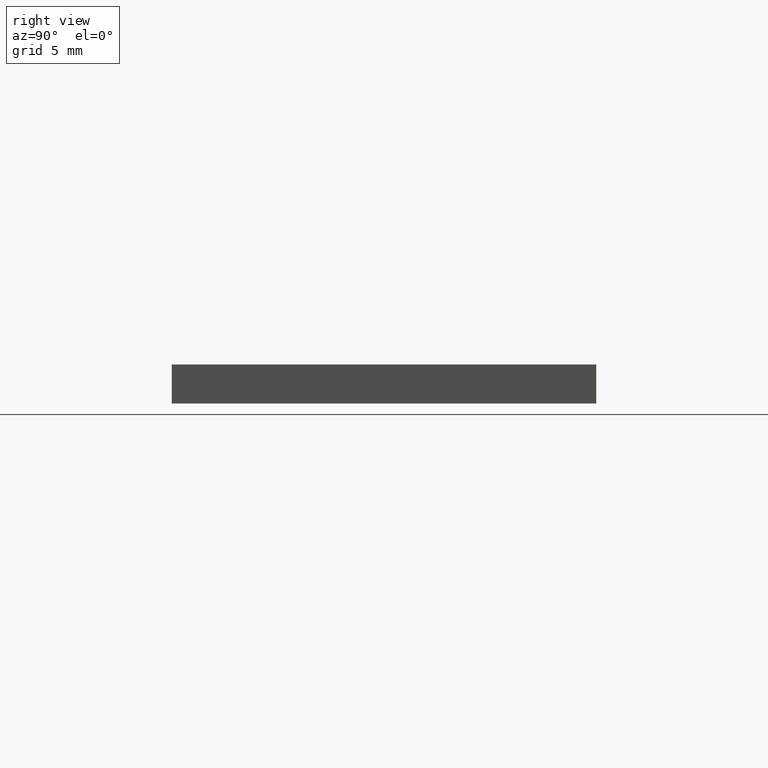
[diagram: clean part render]
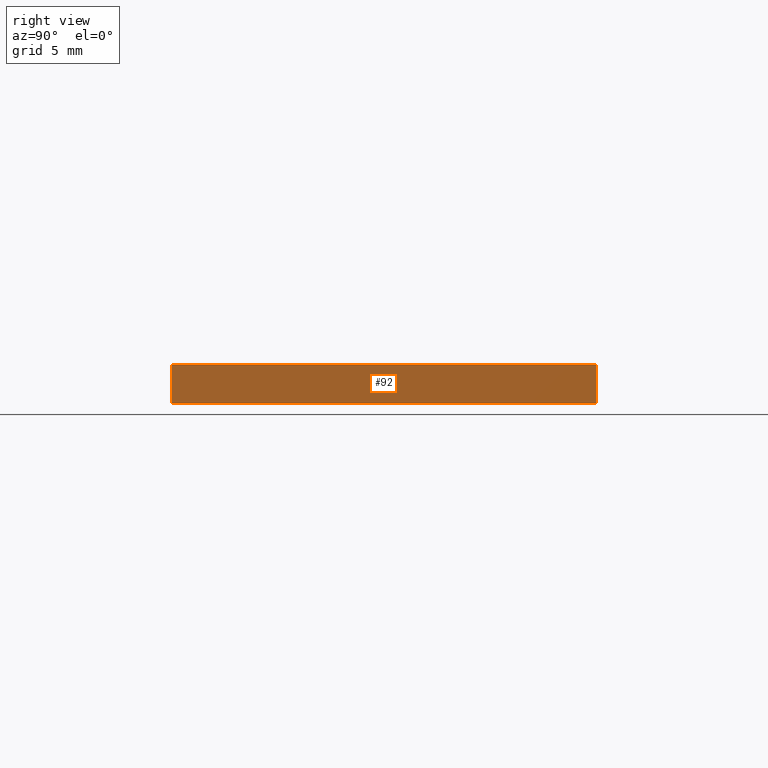
[diagram: same view with one face highlighted and labeled with its STEP entity id]
A machine part, right view. The second image highlights one B-rep face of the part: STEP entity #92.
In plain terms, the highlighted planar face has unit normal (-1, 0, 0).
Its self-contained STEP definition (entity closure, byte-faithful):
#1 = CARTESIAN_POINT ( 'NONE',  ( 126.1149839422837100, 74.06324183452659300, 0.0000000000000000000 ) ) ;
#6 = LINE ( 'NONE', #25, #73 ) ;
#18 = LINE ( 'NONE', #177, #166 ) ;
#25 = CARTESIAN_POINT ( 'NONE',  ( 126.1149839422836900, 49.06324183452659300, 2.299999999999999800 ) ) ;
#28 = DIRECTION ( 'NONE',  ( -0.0000000000000000000, -0.0000000000000000000, -1.000000000000000000 ) ) ;
#35 = LINE ( 'NONE', #1, #99 ) ;
#37 = DIRECTION ( 'NONE',  ( -1.110223024625156700E-015, -1.000000000000000000, 0.0000000000000000000 ) ) ;
#43 = DIRECTION ( 'NONE',  ( -0.0000000000000000000, -0.0000000000000000000, -1.000000000000000000 ) ) ;
#55 = CARTESIAN_POINT ( 'NONE',  ( 126.1149839422837100, 74.06324183452659300, 0.0000000000000000000 ) ) ;
#66 = EDGE_CURVE ( 'NONE', #116, #125, #18, .T. ) ;
#69 = CARTESIAN_POINT ( 'NONE',  ( 126.1149839422836900, 49.06324183452659300, 2.299999999999999800 ) ) ;
#73 = VECTOR ( 'NONE', #28, 1000.000000000000000 ) ;
#77 = AXIS2_PLACEMENT_3D ( 'NONE', #93, #131, #37 ) ;
#83 = DIRECTION ( 'NONE',  ( 1.110223024625156700E-015, 1.000000000000000000, -0.0000000000000000000 ) ) ;
#92 = ADVANCED_FACE ( 'NONE', ( #193 ), #194, .F. ) ;
#93 = CARTESIAN_POINT ( 'NONE',  ( 126.1149839422837100, 74.06324183452659300, 2.299999999999999800 ) ) ;
#99 = VECTOR ( 'NONE', #83, 1000.000000000000000 ) ;
#105 = ORIENTED_EDGE ( 'NONE', *, *, #124, .T. ) ;
#107 = DIRECTION ( 'NONE',  ( 1.110223024625156700E-015, 1.000000000000000000, -0.0000000000000000000 ) ) ;
#116 = VERTEX_POINT ( 'NONE', #69 ) ;
#120 = EDGE_CURVE ( 'NONE', #116, #180, #6, .T. ) ;
#124 = EDGE_CURVE ( 'NONE', #180, #165, #35, .T. ) ;
#125 = VERTEX_POINT ( 'NONE', #168 ) ;
#126 = ORIENTED_EDGE ( 'NONE', *, *, #133, .F. ) ;
#131 = DIRECTION ( 'NONE',  ( -1.000000000000000000, 1.110223024625156700E-015, 0.0000000000000000000 ) ) ;
#133 = EDGE_CURVE ( 'NONE', #125, #165, #149, .T. ) ;
#149 = LINE ( 'NONE', #150, #201 ) ;
#150 = CARTESIAN_POINT ( 'NONE',  ( 126.1149839422837100, 74.06324183452659300, 2.299999999999999800 ) ) ;
#165 = VERTEX_POINT ( 'NONE', #55 ) ;
#166 = VECTOR ( 'NONE', #107, 1000.000000000000000 ) ;
#168 = CARTESIAN_POINT ( 'NONE',  ( 126.1149839422837100, 74.06324183452659300, 2.299999999999999800 ) ) ;
#171 = EDGE_LOOP ( 'NONE', ( #105, #126, #183, #176 ) ) ;
#176 = ORIENTED_EDGE ( 'NONE', *, *, #120, .T. ) ;
#177 = CARTESIAN_POINT ( 'NONE',  ( 126.1149839422837100, 74.06324183452659300, 2.299999999999999800 ) ) ;
#180 = VERTEX_POINT ( 'NONE', #182 ) ;
#182 = CARTESIAN_POINT ( 'NONE',  ( 126.1149839422836900, 49.06324183452659300, 0.0000000000000000000 ) ) ;
#183 = ORIENTED_EDGE ( 'NONE', *, *, #66, .F. ) ;
#193 = FACE_OUTER_BOUND ( 'NONE', #171, .T. ) ;
#194 = PLANE ( 'NONE',  #77 ) ;
#201 = VECTOR ( 'NONE', #43, 1000.000000000000000 ) ;